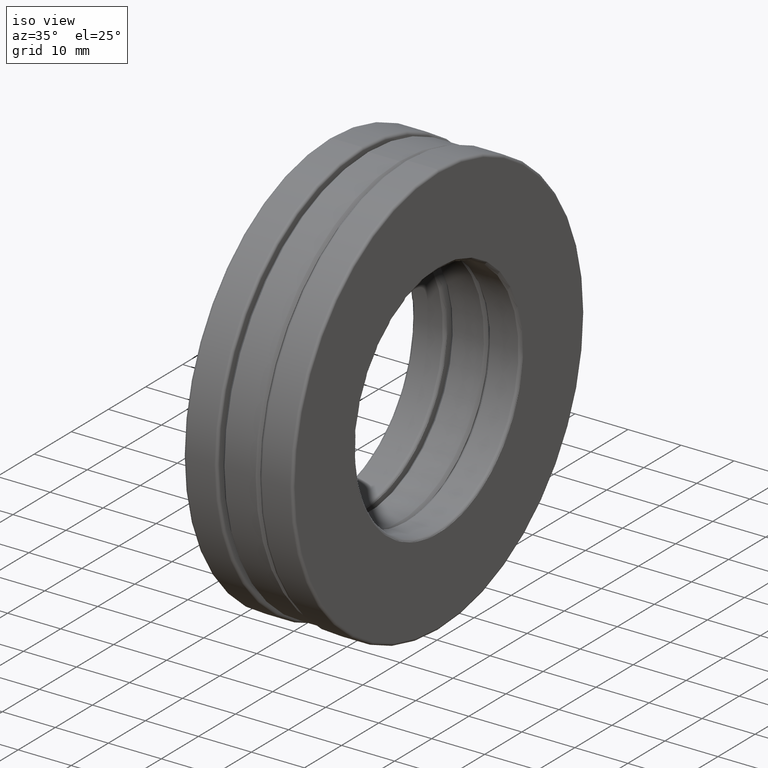
[diagram: clean part render]
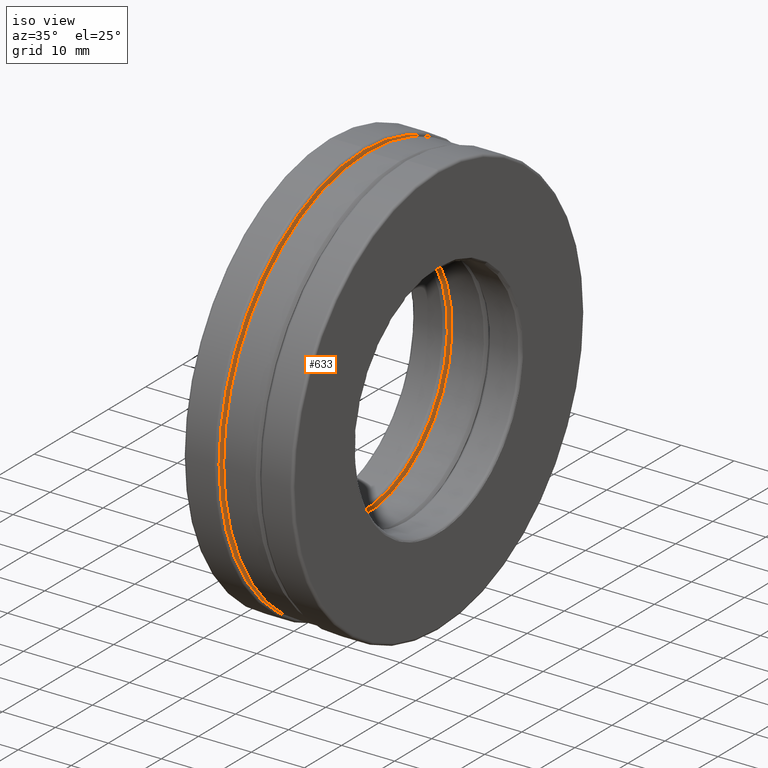
[diagram: same view with one face highlighted and labeled with its STEP entity id]
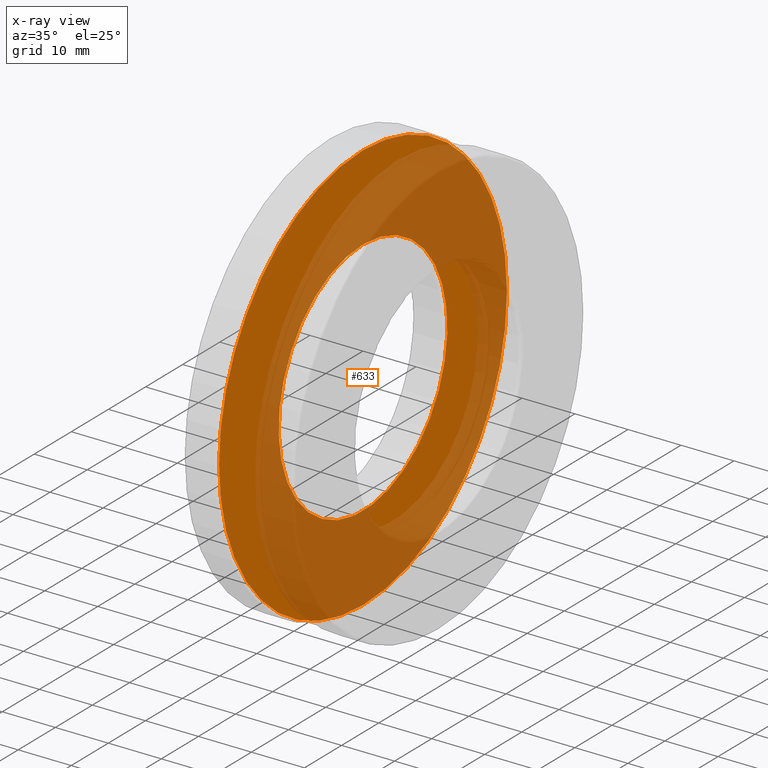
[diagram: x-ray of the same camera — body ghosted, the highlighted face saturated]
A machine part, iso view. The second image highlights one B-rep face of the part: STEP entity #633.
The next image is the same camera in x-ray: the body ghosted, the highlighted face saturated — about 60% of this face is hidden behind the body in this view.
In plain terms, the highlighted planar face has unit normal (1, 0, 0).
Its self-contained STEP definition (entity closure, byte-faithful):
#70 = AXIS2_PLACEMENT_3D ( 'NONE', #726, #1188, #638 ) ;
#115 = CARTESIAN_POINT ( 'NONE',  ( -0.1560000000000000000, 0.0000000000000000000, 0.0000000000000000000 ) ) ;
#302 = PLANE ( 'NONE',  #70 ) ;
#377 = ORIENTED_EDGE ( 'NONE', *, *, #830, .F. ) ;
#412 = EDGE_LOOP ( 'NONE', ( #377 ) ) ;
#434 = CARTESIAN_POINT ( 'NONE',  ( -0.1559999999999999400, 0.0000000000000000000, 1.526875000000000400 ) ) ;
#448 = AXIS2_PLACEMENT_3D ( 'NONE', #115, #887, #1012 ) ;
#453 = FACE_BOUND ( 'NONE', #497, .T. ) ;
#497 = EDGE_LOOP ( 'NONE', ( #914 ) ) ;
#554 = DIRECTION ( 'NONE',  ( -1.000000000000000000, -0.0000000000000000000, -0.0000000000000000000 ) ) ;
#563 = EDGE_CURVE ( 'NONE', #1091, #1091, #746, .T. ) ;
#583 = FACE_OUTER_BOUND ( 'NONE', #412, .T. ) ;
#633 = ADVANCED_FACE ( 'NONE', ( #453, #583 ), #302, .T. ) ;
#638 = DIRECTION ( 'NONE',  ( 0.0000000000000000000, 0.0000000000000000000, -1.000000000000000000 ) ) ;
#726 = CARTESIAN_POINT ( 'NONE',  ( -0.1560000000000000000, 8.430628823177544700E-018, 0.0000000000000000000 ) ) ;
#746 = CIRCLE ( 'NONE', #448, 0.8950000000000000200 ) ;
#830 = EDGE_CURVE ( 'NONE', #1009, #1009, #1427, .T. ) ;
#887 = DIRECTION ( 'NONE',  ( -1.000000000000000000, -0.0000000000000000000, -0.0000000000000000000 ) ) ;
#914 = ORIENTED_EDGE ( 'NONE', *, *, #563, .T. ) ;
#1006 = DIRECTION ( 'NONE',  ( 0.0000000000000000000, 0.0000000000000000000, 1.000000000000000000 ) ) ;
#1009 = VERTEX_POINT ( 'NONE', #434 ) ;
#1012 = DIRECTION ( 'NONE',  ( 0.0000000000000000000, 0.0000000000000000000, 1.000000000000000000 ) ) ;
#1091 = VERTEX_POINT ( 'NONE', #1115 ) ;
#1115 = CARTESIAN_POINT ( 'NONE',  ( -0.1560000000000000000, 0.0000000000000000000, 0.8950000000000000200 ) ) ;
#1188 = DIRECTION ( 'NONE',  ( 1.000000000000000000, 0.0000000000000000000, 0.0000000000000000000 ) ) ;
#1338 = CARTESIAN_POINT ( 'NONE',  ( -0.1559999999999999400, 0.0000000000000000000, 0.0000000000000000000 ) ) ;
#1385 = AXIS2_PLACEMENT_3D ( 'NONE', #1338, #554, #1006 ) ;
#1427 = CIRCLE ( 'NONE', #1385, 1.526875000000000400 ) ;